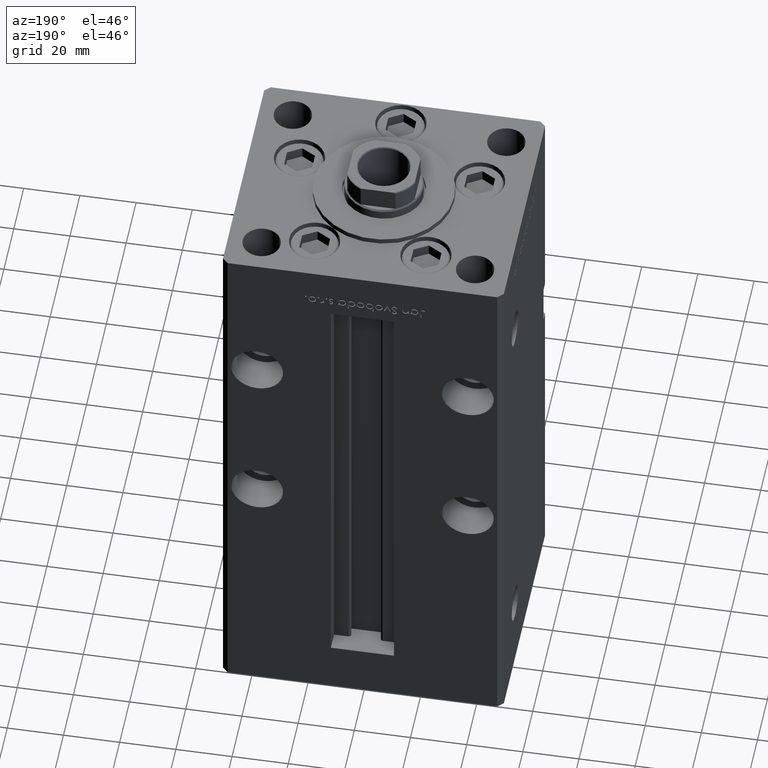
[diagram: clean part render]
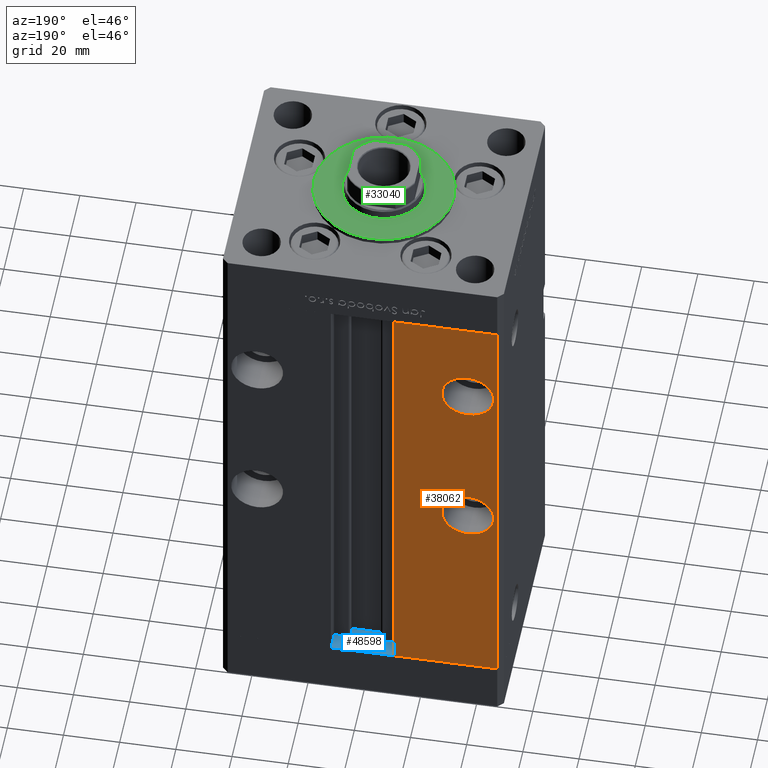
[diagram: same view with three faces highlighted in distinct colors, each labeled with its STEP entity id]
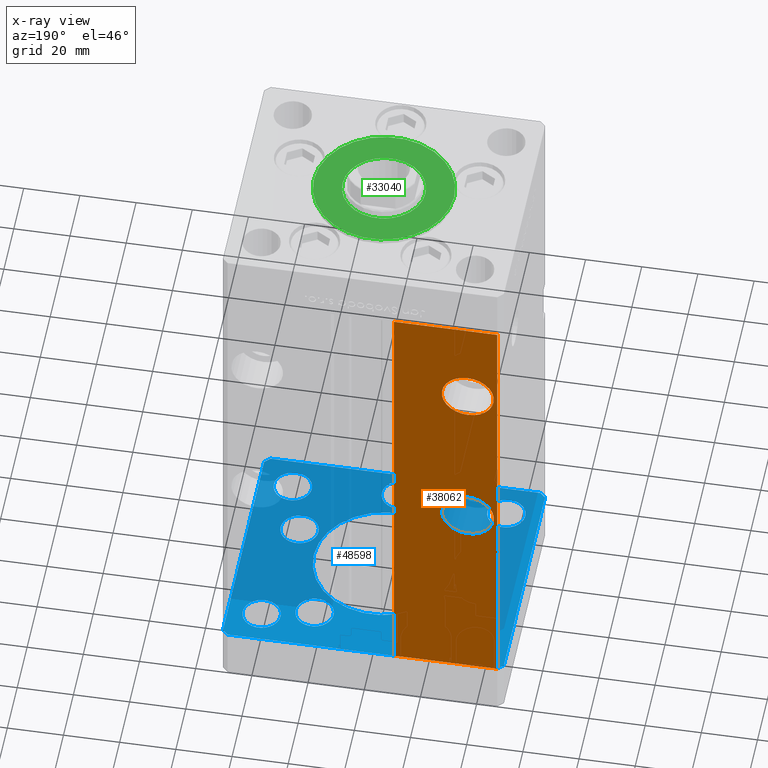
[diagram: x-ray of the same camera — body ghosted, the three highlighted faces saturated]
A machine part, auxiliary view with three faces highlighted in distinct colors.
The next image is the same camera in x-ray (body ghosted, the three faces saturated) — at least one of them is partly hidden behind the body in this view.
Their STEP definitions:

[orange] entity #38062 — the highlighted planar face has unit normal (0, -1, 0).
#952 = EDGE_LOOP ( 'NONE', ( #19418, #35742, #45021, #17333 ) ) ;
#1560 = DIRECTION ( 'NONE',  ( 0.000000000000000000, 1.000000000000000000, 0.000000000000000000 ) ) ;
#2769 = CARTESIAN_POINT ( 'NONE',  ( -48.00000000000000711, 43.50000000000000000, 168.5000000000000000 ) ) ;
#3016 = EDGE_CURVE ( 'NONE', #5692, #19724, #29517, .T. ) ;
#3390 = AXIS2_PLACEMENT_3D ( 'NONE', #39594, #30735, #47673 ) ;
#4794 = EDGE_LOOP ( 'NONE', ( #52366, #37673 ) ) ;
#5028 = CIRCLE ( 'NONE', #19613, 9.250000000000008882 ) ;
#5692 = VERTEX_POINT ( 'NONE', #34350 ) ;
#6841 = FACE_BOUND ( 'NONE', #4794, .T. ) ;
#6953 = LINE ( 'NONE', #47336, #10856 ) ;
#7086 = ORIENTED_EDGE ( 'NONE', *, *, #11785, .F. ) ;
#7271 = VERTEX_POINT ( 'NONE', #44191 ) ;
#7900 = CIRCLE ( 'NONE', #11361, 9.250000000000008882 ) ;
#7958 = EDGE_CURVE ( 'NONE', #7271, #36363, #5028, .T. ) ;
#8752 = EDGE_LOOP ( 'NONE', ( #52751, #7086 ) ) ;
#9887 = DIRECTION ( 'NONE',  ( -0.000000000000000000, -0.000000000000000000, -1.000000000000000000 ) ) ;
#10431 = CARTESIAN_POINT ( 'NONE',  ( -37.50000000000000000, 43.50000000000000000, 75.50000000000001421 ) ) ;
#10856 = VECTOR ( 'NONE', #15846, 1000.000000000000000 ) ;
#11361 = AXIS2_PLACEMENT_3D ( 'NONE', #32974, #24623, #48861 ) ;
#11785 = EDGE_CURVE ( 'NONE', #36363, #7271, #23171, .T. ) ;
#14762 = EDGE_CURVE ( 'NONE', #32603, #49263, #26292, .T. ) ;
#14922 = DIRECTION ( 'NONE',  ( 0.000000000000000000, -0.000000000000000000, -1.000000000000000000 ) ) ;
#15492 = DIRECTION ( 'NONE',  ( 0.000000000000000000, 1.000000000000000000, -0.000000000000000000 ) ) ;
#15846 = DIRECTION ( 'NONE',  ( -1.000000000000000000, 0.000000000000000000, 0.000000000000000000 ) ) ;
#16679 = CARTESIAN_POINT ( 'NONE',  ( -37.50000000000000000, 43.50000000000000000, 126.2500000000000000 ) ) ;
#16877 = CARTESIAN_POINT ( 'NONE',  ( -11.24999999999999645, 43.50000000000000000, 0.000000000000000000 ) ) ;
#17333 = ORIENTED_EDGE ( 'NONE', *, *, #14762, .F. ) ;
#17964 = CARTESIAN_POINT ( 'NONE',  ( -11.24999999999999645, 43.50000000000000000, 168.5000000000000000 ) ) ;
#19418 = ORIENTED_EDGE ( 'NONE', *, *, #52844, .T. ) ;
#19613 = AXIS2_PLACEMENT_3D ( 'NONE', #52882, #15492, #32164 ) ;
#19724 = VERTEX_POINT ( 'NONE', #17964 ) ;
#22081 = VECTOR ( 'NONE', #41616, 1000.000000000000000 ) ;
#22989 = FACE_OUTER_BOUND ( 'NONE', #952, .T. ) ;
#23171 = CIRCLE ( 'NONE', #3390, 9.250000000000008882 ) ;
#24623 = DIRECTION ( 'NONE',  ( 0.000000000000000000, 1.000000000000000000, 0.000000000000000000 ) ) ;
#25009 = EDGE_CURVE ( 'NONE', #5692, #49263, #6953, .T. ) ;
#26292 = LINE ( 'NONE', #26556, #44977 ) ;
#26556 = CARTESIAN_POINT ( 'NONE',  ( -48.00000000000000711, 43.50000000000000000, 168.5000000000000000 ) ) ;
#27291 = FACE_BOUND ( 'NONE', #8752, .T. ) ;
#27409 = CIRCLE ( 'NONE', #28268, 9.250000000000008882 ) ;
#28105 = CARTESIAN_POINT ( 'NONE',  ( -11.24999999999999645, 43.50000000000000000, 168.5000000000000000 ) ) ;
#28268 = AXIS2_PLACEMENT_3D ( 'NONE', #10431, #1560, #30876 ) ;
#28635 = CARTESIAN_POINT ( 'NONE',  ( -48.00000000000000711, 43.50000000000000000, 0.000000000000000000 ) ) ;
#29236 = AXIS2_PLACEMENT_3D ( 'NONE', #28105, #48555, #14922 ) ;
#29517 = LINE ( 'NONE', #16877, #22081 ) ;
#30735 = DIRECTION ( 'NONE',  ( 0.000000000000000000, 1.000000000000000000, -0.000000000000000000 ) ) ;
#30876 = DIRECTION ( 'NONE',  ( 0.000000000000000000, 0.000000000000000000, 1.000000000000000000 ) ) ;
#32164 = DIRECTION ( 'NONE',  ( 0.000000000000000000, 0.000000000000000000, -1.000000000000000000 ) ) ;
#32416 = CARTESIAN_POINT ( 'NONE',  ( -37.50000000000000000, 43.50000000000000000, 66.25000000000000000 ) ) ;
#32603 = VERTEX_POINT ( 'NONE', #2769 ) ;
#32974 = CARTESIAN_POINT ( 'NONE',  ( -37.50000000000000000, 43.50000000000000000, 75.50000000000001421 ) ) ;
#34350 = CARTESIAN_POINT ( 'NONE',  ( -11.24999999999999645, 43.50000000000000000, 0.000000000000000000 ) ) ;
#34794 = CARTESIAN_POINT ( 'NONE',  ( -37.50000000000000000, 43.50000000000000000, 84.75000000000001421 ) ) ;
#34974 = LINE ( 'NONE', #39793, #36284 ) ;
#35536 = EDGE_CURVE ( 'NONE', #37014, #40445, #27409, .T. ) ;
#35742 = ORIENTED_EDGE ( 'NONE', *, *, #3016, .F. ) ;
#36284 = VECTOR ( 'NONE', #48138, 1000.000000000000000 ) ;
#36363 = VERTEX_POINT ( 'NONE', #16679 ) ;
#37014 = VERTEX_POINT ( 'NONE', #32416 ) ;
#37673 = ORIENTED_EDGE ( 'NONE', *, *, #35536, .F. ) ;
#38062 = ADVANCED_FACE ( 'NONE', ( #27291, #6841, #22989 ), #51773, .F. ) ;
#39594 = CARTESIAN_POINT ( 'NONE',  ( -37.50000000000000000, 43.50000000000000000, 135.5000000000000000 ) ) ;
#39793 = CARTESIAN_POINT ( 'NONE',  ( -11.24999999999999645, 43.50000000000000000, 168.5000000000000000 ) ) ;
#40445 = VERTEX_POINT ( 'NONE', #34794 ) ;
#41616 = DIRECTION ( 'NONE',  ( -0.000000000000000000, -0.000000000000000000, 1.000000000000000000 ) ) ;
#44191 = CARTESIAN_POINT ( 'NONE',  ( -37.50000000000000000, 43.50000000000000000, 144.7500000000000284 ) ) ;
#44977 = VECTOR ( 'NONE', #9887, 1000.000000000000000 ) ;
#45021 = ORIENTED_EDGE ( 'NONE', *, *, #25009, .T. ) ;
#47336 = CARTESIAN_POINT ( 'NONE',  ( -11.24999999999999645, 43.50000000000000000, 0.000000000000000000 ) ) ;
#47673 = DIRECTION ( 'NONE',  ( 0.000000000000000000, 0.000000000000000000, -1.000000000000000000 ) ) ;
#48138 = DIRECTION ( 'NONE',  ( 1.000000000000000000, 0.000000000000000000, 0.000000000000000000 ) ) ;
#48555 = DIRECTION ( 'NONE',  ( 0.000000000000000000, -1.000000000000000000, 0.000000000000000000 ) ) ;
#48861 = DIRECTION ( 'NONE',  ( 0.000000000000000000, 0.000000000000000000, 1.000000000000000000 ) ) ;
#49263 = VERTEX_POINT ( 'NONE', #28635 ) ;
#51773 = PLANE ( 'NONE',  #29236 ) ;
#52366 = ORIENTED_EDGE ( 'NONE', *, *, #53017, .F. ) ;
#52751 = ORIENTED_EDGE ( 'NONE', *, *, #7958, .F. ) ;
#52844 = EDGE_CURVE ( 'NONE', #32603, #19724, #34974, .T. ) ;
#52882 = CARTESIAN_POINT ( 'NONE',  ( -37.50000000000000000, 43.50000000000000000, 135.5000000000000000 ) ) ;
#53017 = EDGE_CURVE ( 'NONE', #40445, #37014, #7900, .T. ) ;

[blue] entity #48598 — the highlighted planar face has unit normal (0, 0, -1).
#42 = DIRECTION ( 'NONE',  ( 0.000000000000000000, -0.000000000000000000, -1.000000000000000000 ) ) ;
#95 = VECTOR ( 'NONE', #38986, 1000.000000000000000 ) ;
#97 = VERTEX_POINT ( 'NONE', #36422 ) ;
#138 = EDGE_CURVE ( 'NONE', #47874, #12928, #32384, .T. ) ;
#727 = AXIS2_PLACEMENT_3D ( 'NONE', #38216, #29363, #5648 ) ;
#858 = DIRECTION ( 'NONE',  ( 1.000000000000000000, 0.000000000000000000, 0.000000000000000000 ) ) ;
#887 = DIRECTION ( 'NONE',  ( 1.000000000000000000, 0.000000000000000000, 0.000000000000000000 ) ) ;
#1021 = ORIENTED_EDGE ( 'NONE', *, *, #42316, .F. ) ;
#1070 = ORIENTED_EDGE ( 'NONE', *, *, #138, .F. ) ;
#1454 = VERTEX_POINT ( 'NONE', #4607 ) ;
#1756 = VERTEX_POINT ( 'NONE', #44276 ) ;
#2247 = VERTEX_POINT ( 'NONE', #22672 ) ;
#2729 = VECTOR ( 'NONE', #53085, 1000.000000000000000 ) ;
#2908 = EDGE_CURVE ( 'NONE', #29350, #37577, #30637, .T. ) ;
#2919 = FACE_BOUND ( 'NONE', #41132, .T. ) ;
#3018 = CARTESIAN_POINT ( 'NONE',  ( 25.30550741379015278, -11.33333333333333037, -19.00000000000000000 ) ) ;
#3038 = ORIENTED_EDGE ( 'NONE', *, *, #12478, .F. ) ;
#3043 = CARTESIAN_POINT ( 'NONE',  ( -47.99999999999999289, -43.50000000000001421, -19.00000000000000000 ) ) ;
#3275 = VECTOR ( 'NONE', #43409, 1000.000000000000000 ) ;
#3328 = LINE ( 'NONE', #23513, #37691 ) ;
#3377 = EDGE_CURVE ( 'NONE', #23243, #27781, #9226, .T. ) ;
#3545 = ORIENTED_EDGE ( 'NONE', *, *, #33182, .F. ) ;
#3670 = AXIS2_PLACEMENT_3D ( 'NONE', #22483, #39153, #38893 ) ;
#3836 = LINE ( 'NONE', #20263, #2729 ) ;
#3847 = ORIENTED_EDGE ( 'NONE', *, *, #28613, .F. ) ;
#4331 = AXIS2_PLACEMENT_3D ( 'NONE', #20241, #52802, #32343 ) ;
#4607 = CARTESIAN_POINT ( 'NONE',  ( -50.00000000000000000, -41.50000000000000000, -19.00000000000000000 ) ) ;
#5164 = DIRECTION ( 'NONE',  ( 1.000000000000000000, 0.000000000000000000, 0.000000000000000000 ) ) ;
#5221 = AXIS2_PLACEMENT_3D ( 'NONE', #31722, #7770, #11280 ) ;
#5648 = DIRECTION ( 'NONE',  ( -1.000000000000000000, 0.000000000000000000, 0.000000000000000000 ) ) ;
#6305 = DIRECTION ( 'NONE',  ( 8.360113137237628665E-17, -1.000000000000000000, 0.000000000000000000 ) ) ;
#6550 = CARTESIAN_POINT ( 'NONE',  ( 50.00000000000000000, -41.49999999999999289, -19.00000000000000000 ) ) ;
#7219 = DIRECTION ( 'NONE',  ( -0.000000000000000000, -0.000000000000000000, -1.000000000000000000 ) ) ;
#7234 = FACE_BOUND ( 'NONE', #37091, .T. ) ;
#7237 = CARTESIAN_POINT ( 'NONE',  ( -48.00000000000000711, 43.49999999999996447, -19.00000000000000000 ) ) ;
#7430 = AXIS2_PLACEMENT_3D ( 'NONE', #13622, #46448, #20910 ) ;
#7484 = CARTESIAN_POINT ( 'NONE',  ( 38.00000000000000000, -31.49999999999999289, -19.00000000000000000 ) ) ;
#7746 = DIRECTION ( 'NONE',  ( -0.7071067811865474617, 0.7071067811865474617, 0.000000000000000000 ) ) ;
#7770 = DIRECTION ( 'NONE',  ( -0.000000000000000000, 0.000000000000000000, 1.000000000000000000 ) ) ;
#7979 = EDGE_CURVE ( 'NONE', #22579, #1756, #11910, .T. ) ;
#8311 = CARTESIAN_POINT ( 'NONE',  ( 25.00000000000000000, 0.000000000000000000, -19.00000000000000000 ) ) ;
#8313 = CARTESIAN_POINT ( 'NONE',  ( 44.75000000000000000, 31.49999999999999289, -19.00000000000000000 ) ) ;
#8360 = VERTEX_POINT ( 'NONE', #24023 ) ;
#8544 = EDGE_LOOP ( 'NONE', ( #46859, #18772 ) ) ;
#8611 = DIRECTION ( 'NONE',  ( -0.000000000000000000, -0.000000000000000000, -1.000000000000000000 ) ) ;
#8827 = EDGE_LOOP ( 'NONE', ( #23417, #45565 ) ) ;
#8841 = AXIS2_PLACEMENT_3D ( 'NONE', #28581, #42, #858 ) ;
#8945 = ORIENTED_EDGE ( 'NONE', *, *, #9316, .F. ) ;
#9226 = CIRCLE ( 'NONE', #11784, 6.749999999999999112 ) ;
#9316 = EDGE_CURVE ( 'NONE', #29298, #24641, #20547, .T. ) ;
#9361 = CARTESIAN_POINT ( 'NONE',  ( 19.82068048781373193, 27.62500000000000000, -19.00000000000000000 ) ) ;
#9612 = CARTESIAN_POINT ( 'NONE',  ( 47.99999999999999289, -43.50000000000001421, -19.00000000000000000 ) ) ;
#9814 = DIRECTION ( 'NONE',  ( -0.000000000000000000, -0.000000000000000000, -1.000000000000000000 ) ) ;
#9877 = CIRCLE ( 'NONE', #48519, 6.749999999999999112 ) ;
#10075 = ORIENTED_EDGE ( 'NONE', *, *, #43355, .F. ) ;
#10299 = ORIENTED_EDGE ( 'NONE', *, *, #19614, .F. ) ;
#10301 = EDGE_LOOP ( 'NONE', ( #13764, #3545 ) ) ;
#10710 = EDGE_LOOP ( 'NONE', ( #8945, #52098 ) ) ;
#10722 = LINE ( 'NONE', #35733, #95 ) ;
#10940 = ORIENTED_EDGE ( 'NONE', *, *, #32622, .F. ) ;
#11280 = DIRECTION ( 'NONE',  ( 1.000000000000000000, 0.000000000000000000, 0.000000000000000000 ) ) ;
#11355 = AXIS2_PLACEMENT_3D ( 'NONE', #19979, #36109, #47435 ) ;
#11505 = CARTESIAN_POINT ( 'NONE',  ( -44.75000000000000000, 31.50000000000000000, -19.00000000000000000 ) ) ;
#11784 = AXIS2_PLACEMENT_3D ( 'NONE', #34728, #50880, #45045 ) ;
#11794 = CARTESIAN_POINT ( 'NONE',  ( 49.99999999999992184, 41.49999999999998579, -19.00000000000000000 ) ) ;
#11820 = FACE_BOUND ( 'NONE', #21927, .T. ) ;
#11910 = CIRCLE ( 'NONE', #41976, 6.749999999999999112 ) ;
#12001 = DIRECTION ( 'NONE',  ( 0.000000000000000000, 0.000000000000000000, 1.000000000000000000 ) ) ;
#12338 = VERTEX_POINT ( 'NONE', #19556 ) ;
#12478 = EDGE_CURVE ( 'NONE', #2247, #38664, #50824, .T. ) ;
#12503 = VECTOR ( 'NONE', #7746, 1000.000000000000114 ) ;
#12598 = EDGE_CURVE ( 'NONE', #37577, #29350, #20760, .T. ) ;
#12770 = AXIS2_PLACEMENT_3D ( 'NONE', #9361, #25765, #42184 ) ;
#12928 = VERTEX_POINT ( 'NONE', #9612 ) ;
#13190 = CARTESIAN_POINT ( 'NONE',  ( 0.000000000000000000, 0.000000000000000000, -19.00000000000000000 ) ) ;
#13397 = EDGE_LOOP ( 'NONE', ( #29691, #23480 ) ) ;
#13622 = CARTESIAN_POINT ( 'NONE',  ( 0.000000000000000000, 0.000000000000000000, -19.00000000000000000 ) ) ;
#13764 = ORIENTED_EDGE ( 'NONE', *, *, #43068, .F. ) ;
#13811 = EDGE_CURVE ( 'NONE', #15665, #36076, #47630, .T. ) ;
#14099 = CIRCLE ( 'NONE', #44168, 6.749999999999999112 ) ;
#14446 = VERTEX_POINT ( 'NONE', #30399 ) ;
#14468 = CIRCLE ( 'NONE', #727, 6.749999999999999112 ) ;
#14823 = ORIENTED_EDGE ( 'NONE', *, *, #27626, .T. ) ;
#15602 = CARTESIAN_POINT ( 'NONE',  ( -6.749999999999994671, -34.00000000000000000, -19.00000000000000000 ) ) ;
#15665 = VERTEX_POINT ( 'NONE', #40782 ) ;
#15678 = CARTESIAN_POINT ( 'NONE',  ( 50.00000000000000000, -41.49999999999999289, -19.00000000000000000 ) ) ;
#17977 = ORIENTED_EDGE ( 'NONE', *, *, #39356, .F. ) ;
#17983 = ORIENTED_EDGE ( 'NONE', *, *, #3377, .F. ) ;
#18167 = LINE ( 'NONE', #22458, #34188 ) ;
#18237 = CIRCLE ( 'NONE', #11355, 6.749999999999999112 ) ;
#18318 = EDGE_CURVE ( 'NONE', #34104, #25567, #14099, .T. ) ;
#18772 = ORIENTED_EDGE ( 'NONE', *, *, #13811, .F. ) ;
#18773 = EDGE_CURVE ( 'NONE', #24641, #29298, #9877, .T. ) ;
#18823 = CARTESIAN_POINT ( 'NONE',  ( -25.00000000000000000, 3.061616997868382254E-15, -19.00000000000000000 ) ) ;
#19013 = AXIS2_PLACEMENT_3D ( 'NONE', #13190, #30118, #29601 ) ;
#19298 = ORIENTED_EDGE ( 'NONE', *, *, #28892, .F. ) ;
#19556 = CARTESIAN_POINT ( 'NONE',  ( 31.25000000000000000, 31.49999999999999289, -19.00000000000000000 ) ) ;
#19614 = EDGE_CURVE ( 'NONE', #97, #20787, #48656, .T. ) ;
#19979 = CARTESIAN_POINT ( 'NONE',  ( -38.00000000000000000, 31.50000000000000000, -19.00000000000000000 ) ) ;
#20164 = FACE_BOUND ( 'NONE', #10301, .T. ) ;
#20241 = CARTESIAN_POINT ( 'NONE',  ( 4.163799117101000559E-15, -34.00000000000000000, -19.00000000000000000 ) ) ;
#20263 = CARTESIAN_POINT ( 'NONE',  ( -48.00000000000000711, 43.49999999999996447, -19.00000000000000000 ) ) ;
#20289 = DIRECTION ( 'NONE',  ( 0.7071067811865474617, -0.7071067811865474617, 0.000000000000000000 ) ) ;
#20547 = CIRCLE ( 'NONE', #34295, 6.749999999999999112 ) ;
#20642 = CARTESIAN_POINT ( 'NONE',  ( -25.30550741379015278, -11.33333333333333925, -19.00000000000000000 ) ) ;
#20760 = CIRCLE ( 'NONE', #19013, 25.00000000000000000 ) ;
#20787 = VERTEX_POINT ( 'NONE', #28154 ) ;
#20910 = DIRECTION ( 'NONE',  ( 1.000000000000000000, 0.000000000000000000, 0.000000000000000000 ) ) ;
#21168 = CARTESIAN_POINT ( 'NONE',  ( -32.05550741379015278, -11.33333333333333925, -19.00000000000000000 ) ) ;
#21551 = CARTESIAN_POINT ( 'NONE',  ( 44.75000000000000000, -31.49999999999999289, -19.00000000000000000 ) ) ;
#21742 = CIRCLE ( 'NONE', #8841, 6.749999999999999112 ) ;
#21927 = EDGE_LOOP ( 'NONE', ( #32614, #36690 ) ) ;
#22458 = CARTESIAN_POINT ( 'NONE',  ( -50.00000000000000711, 41.49999999999995026, -19.00000000000000000 ) ) ;
#22483 = CARTESIAN_POINT ( 'NONE',  ( 32.05550741379015278, -11.33333333333333037, -19.00000000000000000 ) ) ;
#22579 = VERTEX_POINT ( 'NONE', #11505 ) ;
#22672 = CARTESIAN_POINT ( 'NONE',  ( -38.80550741379015278, -11.33333333333333925, -19.00000000000000000 ) ) ;
#23243 = VERTEX_POINT ( 'NONE', #35715 ) ;
#23417 = ORIENTED_EDGE ( 'NONE', *, *, #12598, .F. ) ;
#23480 = ORIENTED_EDGE ( 'NONE', *, *, #7979, .T. ) ;
#23513 = CARTESIAN_POINT ( 'NONE',  ( -50.00000000000000000, -41.50000000000000000, -19.00000000000000000 ) ) ;
#23633 = DIRECTION ( 'NONE',  ( -1.000000000000000000, 0.000000000000000000, 0.000000000000000000 ) ) ;
#23647 = FACE_BOUND ( 'NONE', #8827, .T. ) ;
#24023 = CARTESIAN_POINT ( 'NONE',  ( 6.750000000000003553, -34.00000000000000000, -19.00000000000000000 ) ) ;
#24641 = VERTEX_POINT ( 'NONE', #40380 ) ;
#25057 = EDGE_CURVE ( 'NONE', #25567, #34104, #26382, .T. ) ;
#25082 = CIRCLE ( 'NONE', #43114, 6.749999999999999112 ) ;
#25142 = DIRECTION ( 'NONE',  ( 1.000000000000000000, 0.000000000000000000, 0.000000000000000000 ) ) ;
#25567 = VERTEX_POINT ( 'NONE', #35811 ) ;
#25765 = DIRECTION ( 'NONE',  ( 0.000000000000000000, -0.000000000000000000, -1.000000000000000000 ) ) ;
#26382 = CIRCLE ( 'NONE', #49604, 6.749999999999999112 ) ;
#27135 = ORIENTED_EDGE ( 'NONE', *, *, #40521, .T. ) ;
#27626 = EDGE_CURVE ( 'NONE', #12338, #30449, #50521, .T. ) ;
#27781 = VERTEX_POINT ( 'NONE', #3018 ) ;
#27817 = DIRECTION ( 'NONE',  ( 1.000000000000000000, 0.000000000000000000, 0.000000000000000000 ) ) ;
#28154 = CARTESIAN_POINT ( 'NONE',  ( 47.99999999999990763, 43.50000000000000000, -19.00000000000000000 ) ) ;
#28314 = CARTESIAN_POINT ( 'NONE',  ( -50.00000000000000711, 41.49999999999995026, -19.00000000000000000 ) ) ;
#28402 = DIRECTION ( 'NONE',  ( 1.000000000000000000, 0.000000000000000000, 0.000000000000000000 ) ) ;
#28581 = CARTESIAN_POINT ( 'NONE',  ( -32.05550741379015278, -11.33333333333333925, -19.00000000000000000 ) ) ;
#28613 = EDGE_CURVE ( 'NONE', #35891, #1454, #18167, .T. ) ;
#28702 = DIRECTION ( 'NONE',  ( 1.000000000000000000, 0.000000000000000000, 0.000000000000000000 ) ) ;
#28892 = EDGE_CURVE ( 'NONE', #8360, #49966, #35940, .T. ) ;
#29085 = AXIS2_PLACEMENT_3D ( 'NONE', #29159, #37498, #29697 ) ;
#29159 = CARTESIAN_POINT ( 'NONE',  ( 4.163799117101000559E-15, -34.00000000000000000, -19.00000000000000000 ) ) ;
#29247 = ORIENTED_EDGE ( 'NONE', *, *, #44612, .F. ) ;
#29298 = VERTEX_POINT ( 'NONE', #37034 ) ;
#29350 = VERTEX_POINT ( 'NONE', #18823 ) ;
#29363 = DIRECTION ( 'NONE',  ( -0.000000000000000000, -0.000000000000000000, -1.000000000000000000 ) ) ;
#29601 = DIRECTION ( 'NONE',  ( 1.000000000000000000, 0.000000000000000000, 0.000000000000000000 ) ) ;
#29638 = EDGE_CURVE ( 'NONE', #1454, #47874, #3328, .T. ) ;
#29691 = ORIENTED_EDGE ( 'NONE', *, *, #45556, .T. ) ;
#29697 = DIRECTION ( 'NONE',  ( 1.000000000000000000, 0.000000000000000000, 0.000000000000000000 ) ) ;
#30118 = DIRECTION ( 'NONE',  ( 0.000000000000000000, -0.000000000000000000, -1.000000000000000000 ) ) ;
#30179 = DIRECTION ( 'NONE',  ( 0.000000000000000000, 0.000000000000000000, 1.000000000000000000 ) ) ;
#30399 = CARTESIAN_POINT ( 'NONE',  ( 13.07068048781373015, 27.62500000000000000, -19.00000000000000000 ) ) ;
#30449 = VERTEX_POINT ( 'NONE', #8313 ) ;
#30637 = CIRCLE ( 'NONE', #7430, 25.00000000000000000 ) ;
#30753 = CIRCLE ( 'NONE', #12770, 6.749999999999999112 ) ;
#31552 = DIRECTION ( 'NONE',  ( 0.000000000000000000, -0.000000000000000000, -1.000000000000000000 ) ) ;
#31722 = CARTESIAN_POINT ( 'NONE',  ( 0.000000000000000000, 0.000000000000000000, -19.00000000000000000 ) ) ;
#31801 = CARTESIAN_POINT ( 'NONE',  ( 26.57068048781372838, 27.62500000000000000, -19.00000000000000000 ) ) ;
#32305 = ORIENTED_EDGE ( 'NONE', *, *, #46002, .F. ) ;
#32343 = DIRECTION ( 'NONE',  ( 1.000000000000000000, 0.000000000000000000, 0.000000000000000000 ) ) ;
#32384 = LINE ( 'NONE', #3043, #39274 ) ;
#32614 = ORIENTED_EDGE ( 'NONE', *, *, #18318, .F. ) ;
#32622 = EDGE_CURVE ( 'NONE', #39251, #97, #51750, .T. ) ;
#32826 = DIRECTION ( 'NONE',  ( -1.000000000000000000, 0.000000000000000000, 0.000000000000000000 ) ) ;
#33182 = EDGE_CURVE ( 'NONE', #14446, #49427, #30753, .T. ) ;
#33208 = CARTESIAN_POINT ( 'NONE',  ( 19.82068048781373193, 27.62500000000000000, -19.00000000000000000 ) ) ;
#33265 = DIRECTION ( 'NONE',  ( 0.000000000000000000, -0.000000000000000000, -1.000000000000000000 ) ) ;
#34011 = EDGE_CURVE ( 'NONE', #36076, #15665, #14468, .T. ) ;
#34104 = VERTEX_POINT ( 'NONE', #21551 ) ;
#34188 = VECTOR ( 'NONE', #6305, 1000.000000000000000 ) ;
#34295 = AXIS2_PLACEMENT_3D ( 'NONE', #37487, #49333, #887 ) ;
#34545 = DIRECTION ( 'NONE',  ( 0.000000000000000000, 0.000000000000000000, 1.000000000000000000 ) ) ;
#34561 = CARTESIAN_POINT ( 'NONE',  ( -37.99999999999999289, -31.50000000000000000, -19.00000000000000000 ) ) ;
#34728 = CARTESIAN_POINT ( 'NONE',  ( 32.05550741379015278, -11.33333333333333037, -19.00000000000000000 ) ) ;
#35242 = CIRCLE ( 'NONE', #4331, 6.749999999999999112 ) ;
#35715 = CARTESIAN_POINT ( 'NONE',  ( 38.80550741379015278, -11.33333333333333037, -19.00000000000000000 ) ) ;
#35733 = CARTESIAN_POINT ( 'NONE',  ( 47.99999999999999289, -43.50000000000001421, -19.00000000000000000 ) ) ;
#35750 = FACE_BOUND ( 'NONE', #8544, .T. ) ;
#35811 = CARTESIAN_POINT ( 'NONE',  ( 31.25000000000000000, -31.49999999999999289, -19.00000000000000000 ) ) ;
#35891 = VERTEX_POINT ( 'NONE', #28314 ) ;
#35940 = CIRCLE ( 'NONE', #29085, 6.749999999999999112 ) ;
#36076 = VERTEX_POINT ( 'NONE', #46576 ) ;
#36109 = DIRECTION ( 'NONE',  ( 0.000000000000000000, 0.000000000000000000, 1.000000000000000000 ) ) ;
#36221 = AXIS2_PLACEMENT_3D ( 'NONE', #21168, #33265, #28702 ) ;
#36293 = FACE_OUTER_BOUND ( 'NONE', #41909, .T. ) ;
#36324 = CARTESIAN_POINT ( 'NONE',  ( 38.00000000000000000, -31.49999999999999289, -19.00000000000000000 ) ) ;
#36422 = CARTESIAN_POINT ( 'NONE',  ( 49.99999999999992184, 41.49999999999998579, -19.00000000000000000 ) ) ;
#36690 = ORIENTED_EDGE ( 'NONE', *, *, #25057, .F. ) ;
#37034 = CARTESIAN_POINT ( 'NONE',  ( -13.07068048781373903, 27.62499999999999645, -19.00000000000000000 ) ) ;
#37091 = EDGE_LOOP ( 'NONE', ( #19298, #17977 ) ) ;
#37487 = CARTESIAN_POINT ( 'NONE',  ( -19.82068048781373903, 27.62499999999999645, -19.00000000000000000 ) ) ;
#37498 = DIRECTION ( 'NONE',  ( 0.000000000000000000, -0.000000000000000000, -1.000000000000000000 ) ) ;
#37563 = VERTEX_POINT ( 'NONE', #7237 ) ;
#37577 = VERTEX_POINT ( 'NONE', #8311 ) ;
#37691 = VECTOR ( 'NONE', #20289, 1000.000000000000114 ) ;
#38216 = CARTESIAN_POINT ( 'NONE',  ( -37.99999999999999289, -31.50000000000000000, -19.00000000000000000 ) ) ;
#38507 = CARTESIAN_POINT ( 'NONE',  ( 38.00000000000000000, 31.49999999999999289, -19.00000000000000000 ) ) ;
#38664 = VERTEX_POINT ( 'NONE', #20642 ) ;
#38812 = VECTOR ( 'NONE', #53267, 1000.000000000000000 ) ;
#38893 = DIRECTION ( 'NONE',  ( 1.000000000000000000, 0.000000000000000000, 0.000000000000000000 ) ) ;
#38986 = DIRECTION ( 'NONE',  ( 0.7071067811865463515, 0.7071067811865487940, 0.000000000000000000 ) ) ;
#39153 = DIRECTION ( 'NONE',  ( 0.000000000000000000, -0.000000000000000000, -1.000000000000000000 ) ) ;
#39251 = VERTEX_POINT ( 'NONE', #15678 ) ;
#39274 = VECTOR ( 'NONE', #27817, 1000.000000000000000 ) ;
#39356 = EDGE_CURVE ( 'NONE', #49966, #8360, #35242, .T. ) ;
#40062 = FACE_BOUND ( 'NONE', #45958, .T. ) ;
#40326 = CARTESIAN_POINT ( 'NONE',  ( -47.99999999999999289, -43.50000000000001421, -19.00000000000000000 ) ) ;
#40380 = CARTESIAN_POINT ( 'NONE',  ( -26.57068048781373903, 27.62499999999999645, -19.00000000000000000 ) ) ;
#40437 = DIRECTION ( 'NONE',  ( 1.000000000000000000, 0.000000000000000000, 0.000000000000000000 ) ) ;
#40508 = CARTESIAN_POINT ( 'NONE',  ( -38.00000000000000000, 31.50000000000000000, -19.00000000000000000 ) ) ;
#40521 = EDGE_CURVE ( 'NONE', #30449, #12338, #52497, .T. ) ;
#40577 = EDGE_LOOP ( 'NONE', ( #44137, #3038 ) ) ;
#40782 = CARTESIAN_POINT ( 'NONE',  ( -44.74999999999999289, -31.50000000000000000, -19.00000000000000000 ) ) ;
#41132 = EDGE_LOOP ( 'NONE', ( #17983, #32305 ) ) ;
#41909 = EDGE_LOOP ( 'NONE', ( #43088, #3847, #29247, #10075, #10299, #10940, #1021, #1070 ) ) ;
#41976 = AXIS2_PLACEMENT_3D ( 'NONE', #40508, #12001, #28402 ) ;
#42184 = DIRECTION ( 'NONE',  ( 1.000000000000000000, 0.000000000000000000, 0.000000000000000000 ) ) ;
#42316 = EDGE_CURVE ( 'NONE', #12928, #39251, #10722, .T. ) ;
#42846 = FACE_BOUND ( 'NONE', #10710, .T. ) ;
#43068 = EDGE_CURVE ( 'NONE', #49427, #14446, #25082, .T. ) ;
#43088 = ORIENTED_EDGE ( 'NONE', *, *, #29638, .F. ) ;
#43114 = AXIS2_PLACEMENT_3D ( 'NONE', #33208, #49370, #25142 ) ;
#43355 = EDGE_CURVE ( 'NONE', #20787, #37563, #52467, .T. ) ;
#43409 = DIRECTION ( 'NONE',  ( -1.003213576468515193E-15, 1.000000000000000000, 0.000000000000000000 ) ) ;
#44137 = ORIENTED_EDGE ( 'NONE', *, *, #46387, .F. ) ;
#44168 = AXIS2_PLACEMENT_3D ( 'NONE', #36324, #8611, #32826 ) ;
#44208 = AXIS2_PLACEMENT_3D ( 'NONE', #34561, #9814, #47463 ) ;
#44276 = CARTESIAN_POINT ( 'NONE',  ( -31.25000000000000000, 31.50000000000000000, -19.00000000000000000 ) ) ;
#44510 = AXIS2_PLACEMENT_3D ( 'NONE', #46658, #34545, #51220 ) ;
#44612 = EDGE_CURVE ( 'NONE', #37563, #35891, #3836, .T. ) ;
#44632 = FACE_BOUND ( 'NONE', #13397, .T. ) ;
#44774 = AXIS2_PLACEMENT_3D ( 'NONE', #38507, #30179, #5164 ) ;
#45045 = DIRECTION ( 'NONE',  ( 1.000000000000000000, 0.000000000000000000, 0.000000000000000000 ) ) ;
#45556 = EDGE_CURVE ( 'NONE', #1756, #22579, #18237, .T. ) ;
#45565 = ORIENTED_EDGE ( 'NONE', *, *, #2908, .F. ) ;
#45958 = EDGE_LOOP ( 'NONE', ( #27135, #14823 ) ) ;
#46002 = EDGE_CURVE ( 'NONE', #27781, #23243, #50098, .T. ) ;
#46387 = EDGE_CURVE ( 'NONE', #38664, #2247, #21742, .T. ) ;
#46448 = DIRECTION ( 'NONE',  ( 0.000000000000000000, -0.000000000000000000, -1.000000000000000000 ) ) ;
#46576 = CARTESIAN_POINT ( 'NONE',  ( -31.24999999999999289, -31.50000000000000000, -19.00000000000000000 ) ) ;
#46658 = CARTESIAN_POINT ( 'NONE',  ( 38.00000000000000000, 31.49999999999999289, -19.00000000000000000 ) ) ;
#46859 = ORIENTED_EDGE ( 'NONE', *, *, #34011, .F. ) ;
#47156 = FACE_BOUND ( 'NONE', #40577, .T. ) ;
#47435 = DIRECTION ( 'NONE',  ( 1.000000000000000000, 0.000000000000000000, 0.000000000000000000 ) ) ;
#47463 = DIRECTION ( 'NONE',  ( -1.000000000000000000, 0.000000000000000000, 0.000000000000000000 ) ) ;
#47630 = CIRCLE ( 'NONE', #44208, 6.749999999999999112 ) ;
#47874 = VERTEX_POINT ( 'NONE', #40326 ) ;
#47972 = CARTESIAN_POINT ( 'NONE',  ( -19.82068048781373903, 27.62499999999999645, -19.00000000000000000 ) ) ;
#48410 = PLANE ( 'NONE',  #5221 ) ;
#48519 = AXIS2_PLACEMENT_3D ( 'NONE', #47972, #31552, #40437 ) ;
#48598 = ADVANCED_FACE ( 'NONE', ( #23647, #47156, #7234, #2919, #20164, #42846, #40062, #44632, #36293, #11820, #35750 ), #48410, .F. ) ;
#48656 = LINE ( 'NONE', #11794, #12503 ) ;
#48971 = CARTESIAN_POINT ( 'NONE',  ( 47.99999999999990763, 43.50000000000000000, -19.00000000000000000 ) ) ;
#49333 = DIRECTION ( 'NONE',  ( 0.000000000000000000, -0.000000000000000000, -1.000000000000000000 ) ) ;
#49370 = DIRECTION ( 'NONE',  ( 0.000000000000000000, -0.000000000000000000, -1.000000000000000000 ) ) ;
#49427 = VERTEX_POINT ( 'NONE', #31801 ) ;
#49604 = AXIS2_PLACEMENT_3D ( 'NONE', #7484, #7219, #23633 ) ;
#49966 = VERTEX_POINT ( 'NONE', #15602 ) ;
#50098 = CIRCLE ( 'NONE', #3670, 6.749999999999999112 ) ;
#50521 = CIRCLE ( 'NONE', #44510, 6.749999999999999112 ) ;
#50824 = CIRCLE ( 'NONE', #36221, 6.749999999999999112 ) ;
#50880 = DIRECTION ( 'NONE',  ( 0.000000000000000000, -0.000000000000000000, -1.000000000000000000 ) ) ;
#51220 = DIRECTION ( 'NONE',  ( 1.000000000000000000, 0.000000000000000000, 0.000000000000000000 ) ) ;
#51750 = LINE ( 'NONE', #6550, #3275 ) ;
#52098 = ORIENTED_EDGE ( 'NONE', *, *, #18773, .F. ) ;
#52467 = LINE ( 'NONE', #48971, #38812 ) ;
#52497 = CIRCLE ( 'NONE', #44774, 6.749999999999999112 ) ;
#52802 = DIRECTION ( 'NONE',  ( 0.000000000000000000, -0.000000000000000000, -1.000000000000000000 ) ) ;
#53085 = DIRECTION ( 'NONE',  ( -0.7071067811865463515, -0.7071067811865487940, 0.000000000000000000 ) ) ;
#53267 = DIRECTION ( 'NONE',  ( -1.000000000000000000, -3.614007241618350743E-16, 0.000000000000000000 ) ) ;

[green] entity #33040 — the highlighted planar face has unit normal (0, 0, 1).
#885 = CIRCLE ( 'NONE', #18888, 14.75000000000000178 ) ;
#2622 = EDGE_CURVE ( 'NONE', #28285, #50531, #6578, .T. ) ;
#2928 = EDGE_LOOP ( 'NONE', ( #52860, #30120 ) ) ;
#3727 = CARTESIAN_POINT ( 'NONE',  ( 25.00000000000000000, -3.877276906038844941E-15, 2.000000000000000000 ) ) ;
#4516 = CARTESIAN_POINT ( 'NONE',  ( 0.000000000000000000, -6.938893903907228378E-15, 2.000000000000000000 ) ) ;
#6578 = CIRCLE ( 'NONE', #19461, 14.75000000000000178 ) ;
#6847 = DIRECTION ( 'NONE',  ( 0.000000000000000000, 0.000000000000000000, 1.000000000000000000 ) ) ;
#6929 = EDGE_CURVE ( 'NONE', #21108, #47988, #36788, .T. ) ;
#7544 = AXIS2_PLACEMENT_3D ( 'NONE', #35635, #6847, #23528 ) ;
#8558 = FACE_BOUND ( 'NONE', #2928, .T. ) ;
#9446 = CARTESIAN_POINT ( 'NONE',  ( 0.000000000000000000, -6.938893903907228378E-15, 2.000000000000000000 ) ) ;
#9779 = CARTESIAN_POINT ( 'NONE',  ( 0.000000000000000000, -6.938893903907228378E-15, 2.000000000000000000 ) ) ;
#10093 = CIRCLE ( 'NONE', #29974, 25.00000000000000000 ) ;
#13606 = AXIS2_PLACEMENT_3D ( 'NONE', #4516, #20146, #20945 ) ;
#15872 = CARTESIAN_POINT ( 'NONE',  ( 0.000000000000000000, -6.938893903907228378E-15, 2.000000000000000000 ) ) ;
#16671 = DIRECTION ( 'NONE',  ( 0.000000000000000000, 0.000000000000000000, 1.000000000000000000 ) ) ;
#18888 = AXIS2_PLACEMENT_3D ( 'NONE', #9779, #25400, #25928 ) ;
#19461 = AXIS2_PLACEMENT_3D ( 'NONE', #15872, #16671, #40071 ) ;
#20146 = DIRECTION ( 'NONE',  ( 0.000000000000000000, 0.000000000000000000, 1.000000000000000000 ) ) ;
#20746 = ORIENTED_EDGE ( 'NONE', *, *, #30232, .T. ) ;
#20945 = DIRECTION ( 'NONE',  ( 1.000000000000000000, 0.000000000000000000, -0.000000000000000000 ) ) ;
#21108 = VERTEX_POINT ( 'NONE', #31855 ) ;
#23528 = DIRECTION ( 'NONE',  ( 1.000000000000000000, 0.000000000000000000, 0.000000000000000000 ) ) ;
#24163 = PLANE ( 'NONE',  #13606 ) ;
#25400 = DIRECTION ( 'NONE',  ( 0.000000000000000000, 0.000000000000000000, 1.000000000000000000 ) ) ;
#25928 = DIRECTION ( 'NONE',  ( 1.000000000000000000, 0.000000000000000000, 0.000000000000000000 ) ) ;
#28285 = VERTEX_POINT ( 'NONE', #39434 ) ;
#29974 = AXIS2_PLACEMENT_3D ( 'NONE', #9446, #30158, #50866 ) ;
#30120 = ORIENTED_EDGE ( 'NONE', *, *, #38187, .F. ) ;
#30158 = DIRECTION ( 'NONE',  ( 0.000000000000000000, 0.000000000000000000, 1.000000000000000000 ) ) ;
#30232 = EDGE_CURVE ( 'NONE', #47988, #21108, #10093, .T. ) ;
#31855 = CARTESIAN_POINT ( 'NONE',  ( -25.00000000000000000, -6.938893903907228378E-15, 2.000000000000000000 ) ) ;
#33040 = ADVANCED_FACE ( 'NONE', ( #8558, #41383 ), #24163, .T. ) ;
#35452 = ORIENTED_EDGE ( 'NONE', *, *, #6929, .T. ) ;
#35635 = CARTESIAN_POINT ( 'NONE',  ( 0.000000000000000000, -6.938893903907228378E-15, 2.000000000000000000 ) ) ;
#36788 = CIRCLE ( 'NONE', #7544, 25.00000000000000000 ) ;
#38187 = EDGE_CURVE ( 'NONE', #50531, #28285, #885, .T. ) ;
#39434 = CARTESIAN_POINT ( 'NONE',  ( 14.75000000000000178, -6.938893903907228378E-15, 2.000000000000000000 ) ) ;
#40071 = DIRECTION ( 'NONE',  ( 1.000000000000000000, 0.000000000000000000, 0.000000000000000000 ) ) ;
#40571 = EDGE_LOOP ( 'NONE', ( #35452, #20746 ) ) ;
#41383 = FACE_OUTER_BOUND ( 'NONE', #40571, .T. ) ;
#43499 = CARTESIAN_POINT ( 'NONE',  ( -14.75000000000000178, -5.132539875164881787E-15, 2.000000000000000000 ) ) ;
#47988 = VERTEX_POINT ( 'NONE', #3727 ) ;
#50531 = VERTEX_POINT ( 'NONE', #43499 ) ;
#50866 = DIRECTION ( 'NONE',  ( 1.000000000000000000, 0.000000000000000000, 0.000000000000000000 ) ) ;
#52860 = ORIENTED_EDGE ( 'NONE', *, *, #2622, .F. ) ;